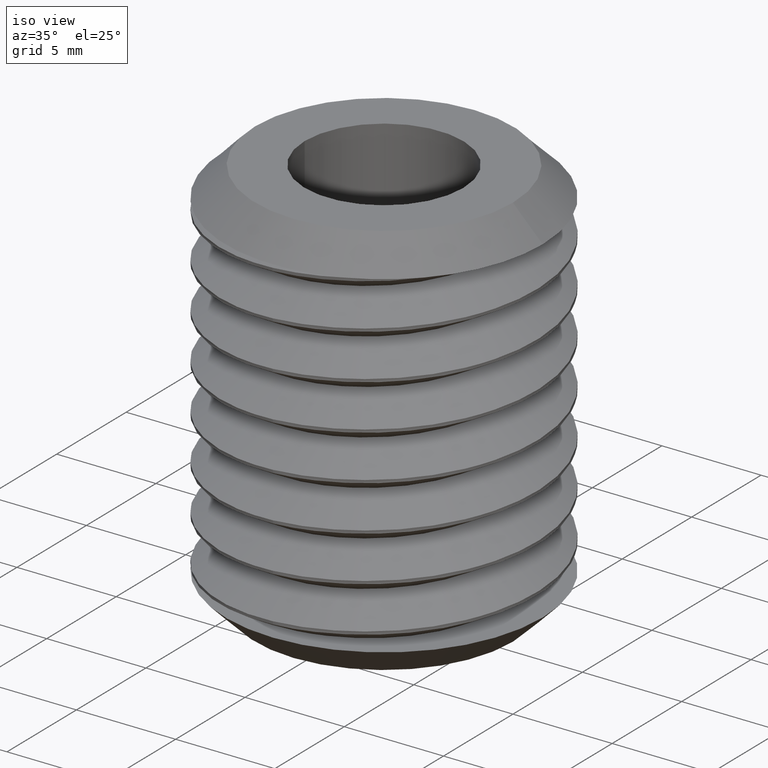
[diagram: clean part render]
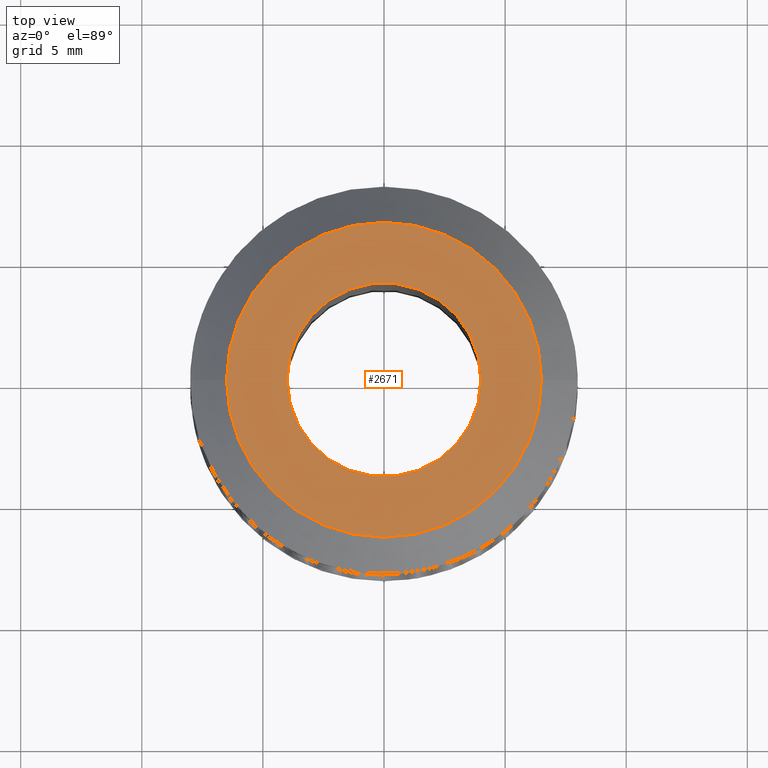
[diagram: tour spotlight — one face highlighted and labeled with its STEP entity id]
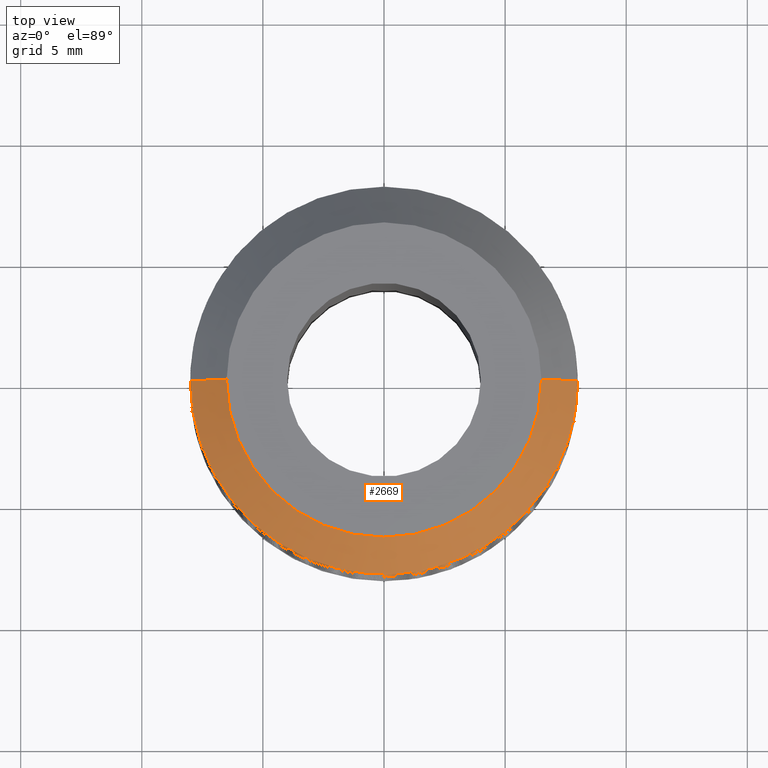
[diagram: tour spotlight — one face highlighted and labeled with its STEP entity id]
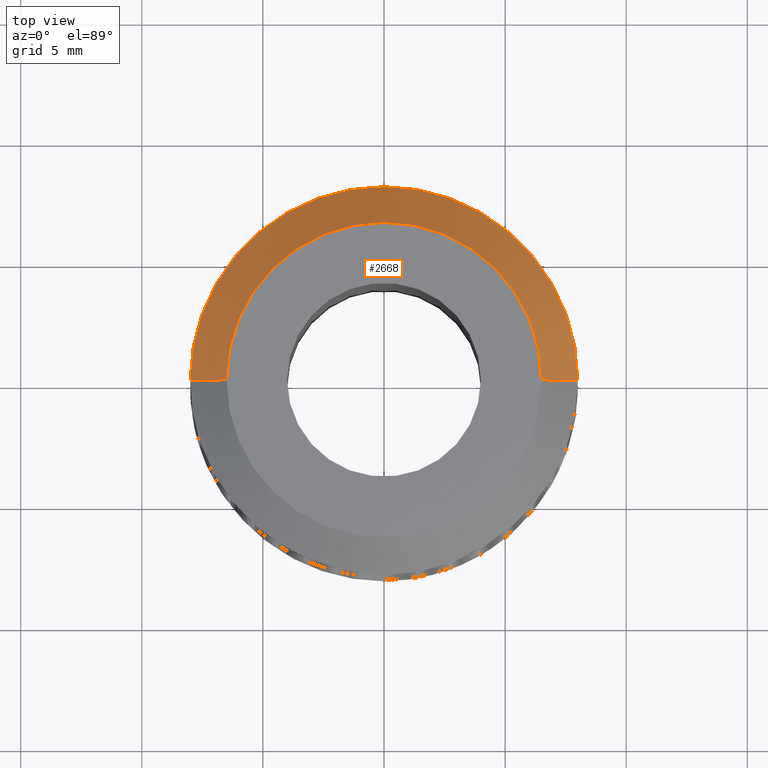
[diagram: tour spotlight — one face highlighted and labeled with its STEP entity id]
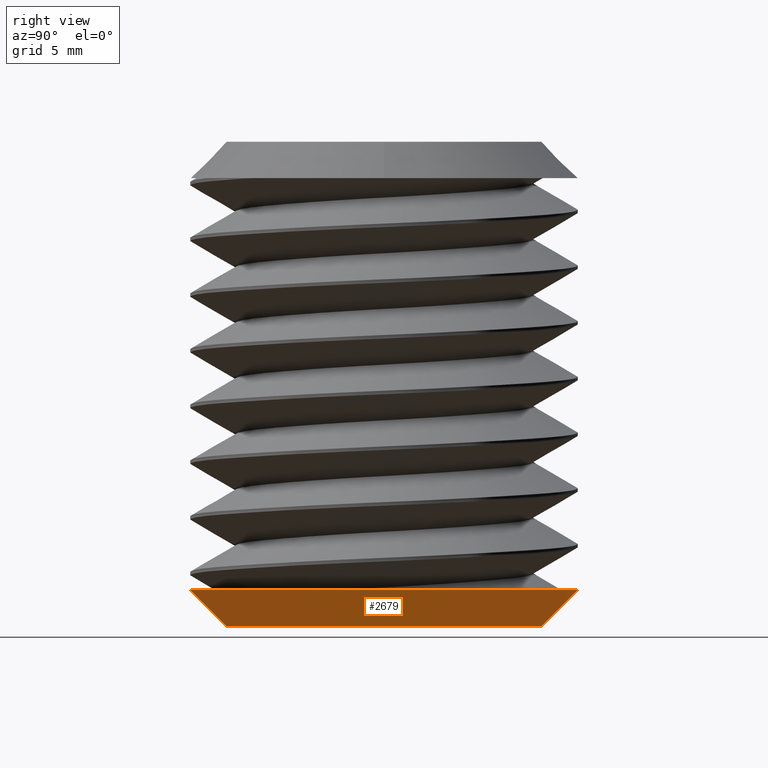
[diagram: tour spotlight — one face highlighted and labeled with its STEP entity id]
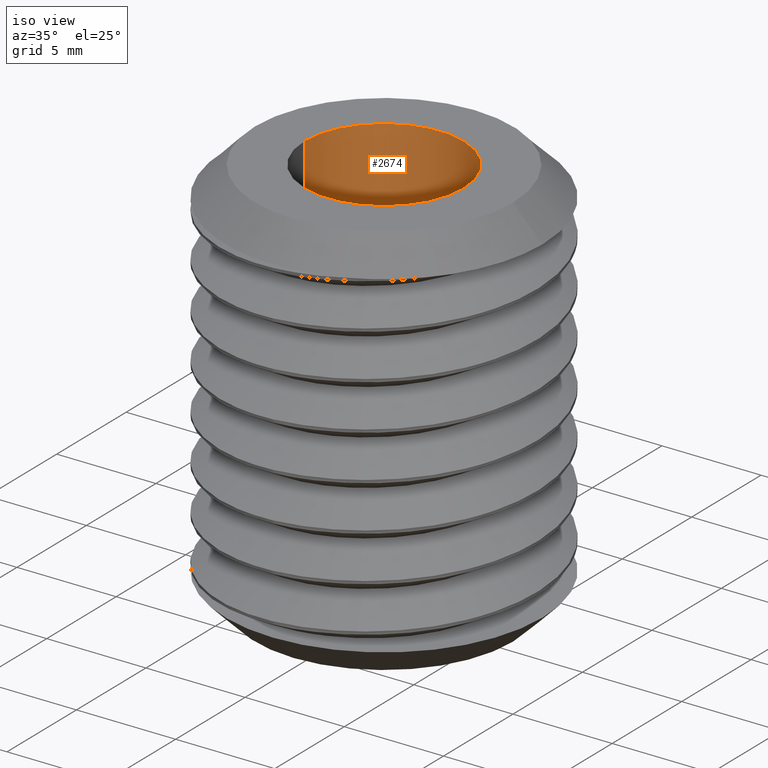
[diagram: tour spotlight — one face highlighted and labeled with its STEP entity id]
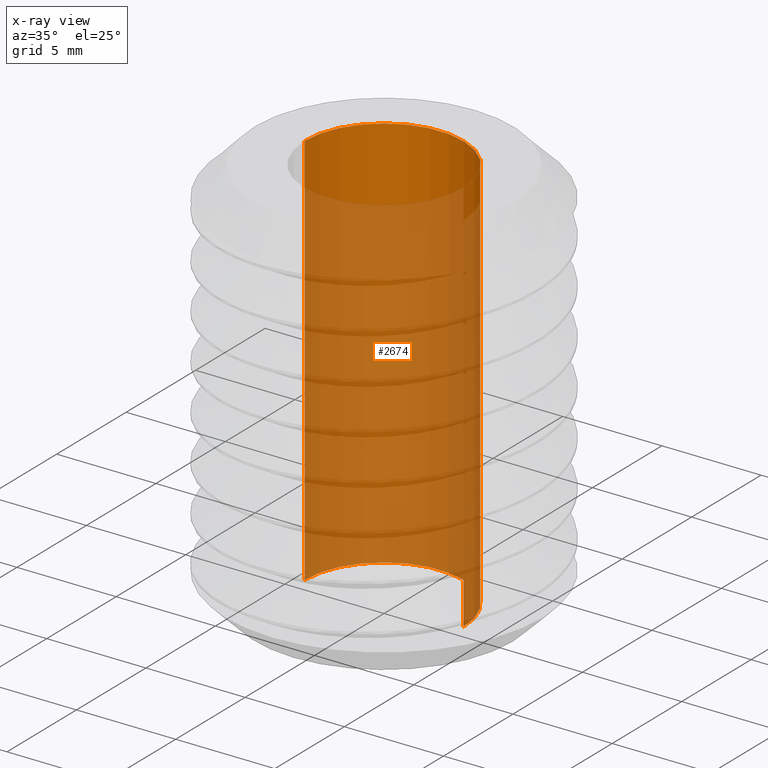
[diagram: x-ray of the same camera — body ghosted, this tour face saturated]
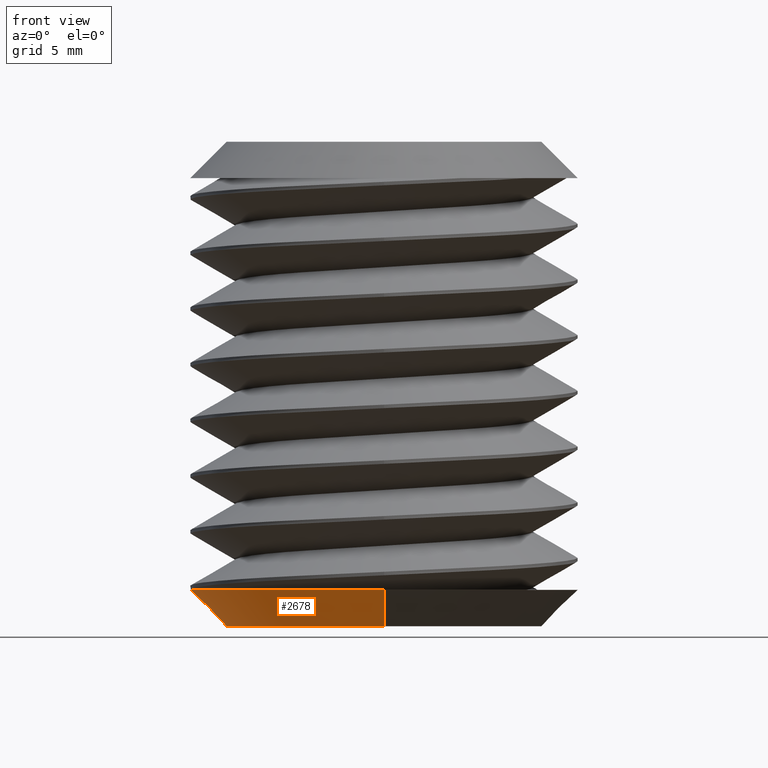
[diagram: tour spotlight — one face highlighted and labeled with its STEP entity id]
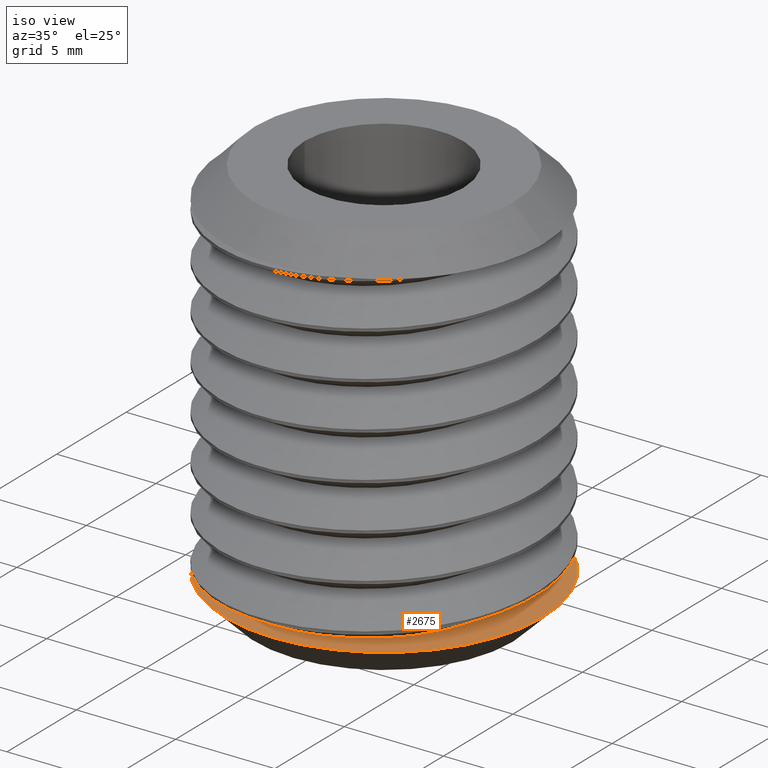
[diagram: tour spotlight — one face highlighted and labeled with its STEP entity id]
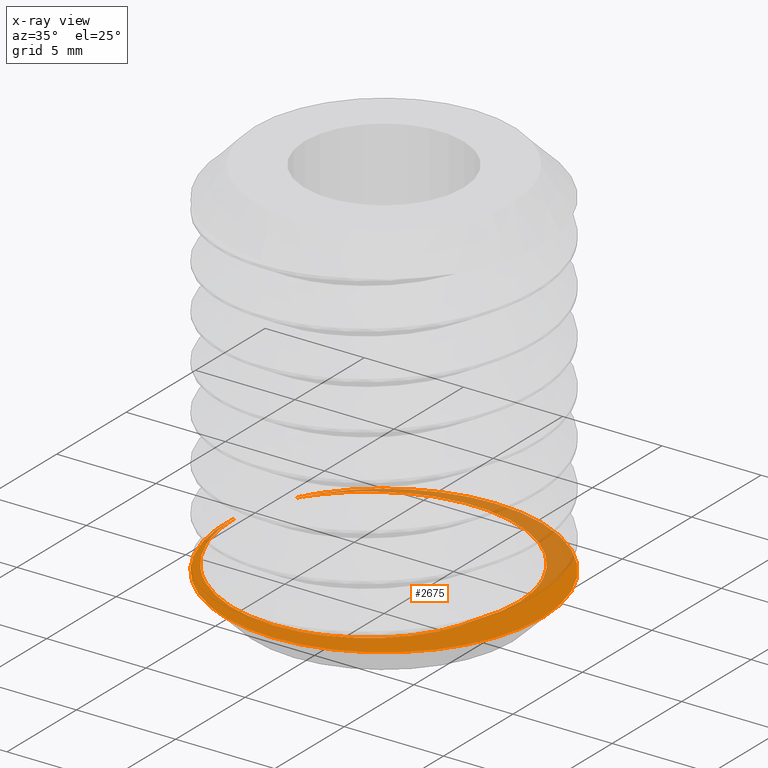
[diagram: x-ray of the same camera — body ghosted, this tour face saturated]
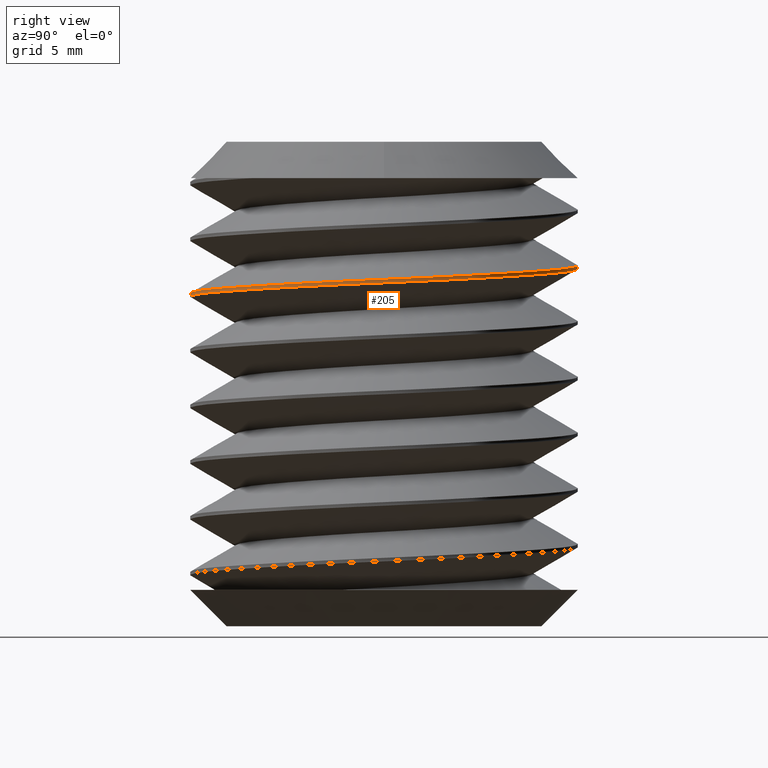
[diagram: tour spotlight — one face highlighted and labeled with its STEP entity id]
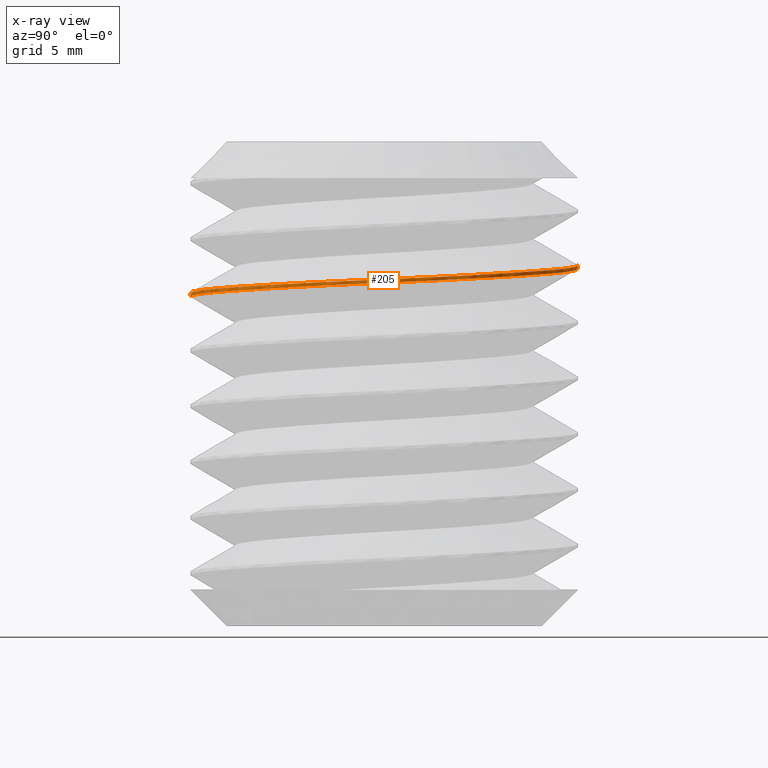
[diagram: x-ray of the same camera — body ghosted, this tour face saturated]
A machine part: a face-by-face anatomy tour. The part has 28 B-rep faces; the first image is the clean iso view, then the 8 largest visible faces are spotlighted one at a time (largest first), each with its STEP entity span.

Face 1 — top view, entity #2671. In plain terms, the highlighted planar face has unit normal (0, 0, 1).
Definition (entity closure, byte-faithful):
#211 = EDGE_CURVE ( 'NONE', #2784, #2789, #1636, .T. ) ;
#578 = CARTESIAN_POINT ( 'NONE',  ( -4.000000000000000000, 0.0000000000000000000, 0.0000000000000000000 ) ) ;
#579 = CARTESIAN_POINT ( 'NONE',  ( -6.500000000000000900, 0.0000000000000000000, 0.0000000000000000000 ) ) ;
#580 = CARTESIAN_POINT ( 'NONE',  ( 4.000000000000000000, 4.898587196589412800E-016, 0.0000000000000000000 ) ) ;
#584 = CARTESIAN_POINT ( 'NONE',  ( 6.500000000000000900, 8.878689293818310100E-016, 0.0000000000000000000 ) ) ;
#752 = PLANE ( 'NONE',  #2639 ) ;
#753 = CARTESIAN_POINT ( 'NONE',  ( -6.578000000000000300, -6.578000000000000300, 0.0000000000000000000 ) ) ;
#754 = DIRECTION ( 'NONE',  ( 0.0000000000000000000, 0.0000000000000000000, 1.000000000000000000 ) ) ;
#755 = DIRECTION ( 'NONE',  ( 1.000000000000000000, 0.0000000000000000000, 0.0000000000000000000 ) ) ;
#863 = EDGE_CURVE ( 'NONE', #2789, #2784, #1569, .T. ) ;
#1061 = CARTESIAN_POINT ( 'NONE',  ( 0.0000000000000000000, 0.0000000000000000000, 0.0000000000000000000 ) ) ;
#1062 = DIRECTION ( 'NONE',  ( -1.000000000000000000, 0.0000000000000000000, 0.0000000000000000000 ) ) ;
#1063 = DIRECTION ( 'NONE',  ( -0.0000000000000000000, -0.0000000000000000000, 1.000000000000000000 ) ) ;
#1071 = CARTESIAN_POINT ( 'NONE',  ( 0.0000000000000000000, 0.0000000000000000000, 0.0000000000000000000 ) ) ;
#1072 = DIRECTION ( 'NONE',  ( -1.000000000000000000, 0.0000000000000000000, 0.0000000000000000000 ) ) ;
#1073 = DIRECTION ( 'NONE',  ( -0.0000000000000000000, -0.0000000000000000000, 1.000000000000000000 ) ) ;
#1302 = CARTESIAN_POINT ( 'NONE',  ( 0.0000000000000000000, 0.0000000000000000000, 0.0000000000000000000 ) ) ;
#1303 = DIRECTION ( 'NONE',  ( -0.0000000000000000000, -0.0000000000000000000, 1.000000000000000000 ) ) ;
#1304 = DIRECTION ( 'NONE',  ( -1.000000000000000000, 0.0000000000000000000, 0.0000000000000000000 ) ) ;
#1442 = ORIENTED_EDGE ( 'NONE', *, *, #2598, .F. ) ;
#1443 = ORIENTED_EDGE ( 'NONE', *, *, #2726, .F. ) ;
#1444 = ORIENTED_EDGE ( 'NONE', *, *, #211, .T. ) ;
#1445 = ORIENTED_EDGE ( 'NONE', *, *, #863, .T. ) ;
#1536 = CIRCLE ( 'NONE', #2647, 4.000000000000000000 ) ;
#1546 = FACE_OUTER_BOUND ( 'NONE', #1595, .T. ) ;
#1561 = CIRCLE ( 'NONE', #2625, 4.000000000000000000 ) ;
#1569 = CIRCLE ( 'NONE', #2620, 6.500000000000000900 ) ;
#1595 = EDGE_LOOP ( 'NONE', ( #1444, #1445 ) ) ;
#1597 = EDGE_LOOP ( 'NONE', ( #1443, #1442 ) ) ;
#1636 = CIRCLE ( 'NONE', #2618, 6.500000000000000900 ) ;
#1691 = FACE_BOUND ( 'NONE', #1597, .T. ) ;
#2398 = CARTESIAN_POINT ( 'NONE',  ( 0.0000000000000000000, 0.0000000000000000000, 0.0000000000000000000 ) ) ;
#2399 = DIRECTION ( 'NONE',  ( -0.0000000000000000000, -0.0000000000000000000, 1.000000000000000000 ) ) ;
#2400 = DIRECTION ( 'NONE',  ( -1.000000000000000000, 0.0000000000000000000, 0.0000000000000000000 ) ) ;
#2598 = EDGE_CURVE ( 'NONE', #2785, #2783, #1561, .T. ) ;
#2618 = AXIS2_PLACEMENT_3D ( 'NONE', #1061, #1063, #1062 ) ;
#2620 = AXIS2_PLACEMENT_3D ( 'NONE', #1071, #1073, #1072 ) ;
#2625 = AXIS2_PLACEMENT_3D ( 'NONE', #1302, #1303, #1304 ) ;
#2639 = AXIS2_PLACEMENT_3D ( 'NONE', #753, #754, #755 ) ;
#2647 = AXIS2_PLACEMENT_3D ( 'NONE', #2398, #2399, #2400 ) ;
#2671 = ADVANCED_FACE ( 'NONE', ( #1691, #1546 ), #752, .T. ) ;
#2726 = EDGE_CURVE ( 'NONE', #2783, #2785, #1536, .T. ) ;
#2783 = VERTEX_POINT ( 'NONE', #578 ) ;
#2784 = VERTEX_POINT ( 'NONE', #579 ) ;
#2785 = VERTEX_POINT ( 'NONE', #580 ) ;
#2789 = VERTEX_POINT ( 'NONE', #584 ) ;

Face 2 — top view, entity #2669. In plain terms, the highlighted conical surface has half-angle 45 deg.
Definition (entity closure, byte-faithful):
#210 = EDGE_CURVE ( 'NONE', #2799, #2798, #1574, .T. ) ;
#211 = EDGE_CURVE ( 'NONE', #2784, #2789, #1636, .T. ) ;
#212 = EDGE_CURVE ( 'NONE', #2784, #2799, #1573, .T. ) ;
#575 = CARTESIAN_POINT ( 'NONE',  ( 8.000000000000000000, 9.797174393178825700E-016, -1.500000000000000000 ) ) ;
#579 = CARTESIAN_POINT ( 'NONE',  ( -6.500000000000000900, 0.0000000000000000000, 0.0000000000000000000 ) ) ;
#584 = CARTESIAN_POINT ( 'NONE',  ( 6.500000000000000900, 8.878689293818310100E-016, 0.0000000000000000000 ) ) ;
#592 = CARTESIAN_POINT ( 'NONE',  ( 3.187210474222873300, -7.337689648326436200, -1.500000000000000700 ) ) ;
#593 = CARTESIAN_POINT ( 'NONE',  ( -8.000000000000000000, 0.0000000000000000000, -1.500000000000000000 ) ) ;
#596 = CARTESIAN_POINT ( 'NONE',  ( 5.853420173174110500, -5.453207521842385200, -1.500000001023213500 ) ) ;
#745 = CARTESIAN_POINT ( 'NONE',  ( 0.0000000000000000000, 0.0000000000000000000, 0.0000000000000000000 ) ) ;
#746 = DIRECTION ( 'NONE',  ( 0.0000000000000000000, 0.0000000000000000000, -1.000000000000000000 ) ) ;
#747 = DIRECTION ( 'NONE',  ( -1.000000000000000000, 0.0000000000000000000, 0.0000000000000000000 ) ) ;
#862 = EDGE_CURVE ( 'NONE', #2789, #2779, #1572, .T. ) ;
#880 = DIRECTION ( 'NONE',  ( -1.000000000000000000, 1.776356839400250500E-015, 0.0000000000000000000 ) ) ;
#881 = CARTESIAN_POINT ( 'NONE',  ( 0.0000000000000000000, 0.0000000000000000000, -1.500000000000000000 ) ) ;
#882 = CARTESIAN_POINT ( 'NONE',  ( 0.0000000000000000000, 0.0000000000000000000, -1.500000000000001300 ) ) ;
#884 = DIRECTION ( 'NONE',  ( -0.0000000000000000000, -0.0000000000000000000, 1.000000000000000000 ) ) ;
#919 = DIRECTION ( 'NONE',  ( 0.0000000000000000000, 0.0000000000000000000, 1.000000000000000000 ) ) ;
#920 = DIRECTION ( 'NONE',  ( 1.000000000000000000, 0.0000000000000000000, 1.626303258728256700E-016 ) ) ;
#1058 = CARTESIAN_POINT ( 'NONE',  ( 0.0000000000000000000, 0.0000000000000000000, -1.500000000000000000 ) ) ;
#1059 = DIRECTION ( 'NONE',  ( -1.000000000000000000, 0.0000000000000000000, 0.0000000000000000000 ) ) ;
#1060 = DIRECTION ( 'NONE',  ( -0.0000000000000000000, -0.0000000000000000000, 1.000000000000000000 ) ) ;
#1061 = CARTESIAN_POINT ( 'NONE',  ( 0.0000000000000000000, 0.0000000000000000000, 0.0000000000000000000 ) ) ;
#1062 = DIRECTION ( 'NONE',  ( -1.000000000000000000, 0.0000000000000000000, 0.0000000000000000000 ) ) ;
#1063 = DIRECTION ( 'NONE',  ( -0.0000000000000000000, -0.0000000000000000000, 1.000000000000000000 ) ) ;
#1064 = CARTESIAN_POINT ( 'NONE',  ( -6.500000000000000900, 0.0000000000000000000, 0.0000000000000000000 ) ) ;
#1065 = DIRECTION ( 'NONE',  ( -0.7071067811865474600, 0.0000000000000000000, -0.7071067811865476800 ) ) ;
#1069 = DIRECTION ( 'NONE',  ( 0.7071067811865474600, 8.659560562354931600E-017, -0.7071067811865476800 ) ) ;
#1070 = CARTESIAN_POINT ( 'NONE',  ( 6.500000000000000900, 7.960204194457796500E-016, 0.0000000000000000000 ) ) ;
#1431 = ORIENTED_EDGE ( 'NONE', *, *, #862, .F. ) ;
#1432 = ORIENTED_EDGE ( 'NONE', *, *, #211, .F. ) ;
#1438 = ORIENTED_EDGE ( 'NONE', *, *, #210, .T. ) ;
#1439 = ORIENTED_EDGE ( 'NONE', *, *, #2100, .T. ) ;
#1440 = ORIENTED_EDGE ( 'NONE', *, *, #2099, .T. ) ;
#1486 = ORIENTED_EDGE ( 'NONE', *, *, #212, .T. ) ;
#1547 = CONICAL_SURFACE ( 'NONE', #2637, 6.500000000000000900, 0.7853981633974481700 ) ;
#1549 = FACE_OUTER_BOUND ( 'NONE', #1645, .T. ) ;
#1562 = CIRCLE ( 'NONE', #2624, 8.000000000000000000 ) ;
#1563 = CIRCLE ( 'NONE', #2623, 8.000000000000000000 ) ;
#1572 = LINE ( 'NONE', #1070, #1635 ) ;
#1573 = LINE ( 'NONE', #1064, #1637 ) ;
#1574 = CIRCLE ( 'NONE', #2617, 8.000000000000000000 ) ;
#1635 = VECTOR ( 'NONE', #1069, 1000.000000000000000 ) ;
#1636 = CIRCLE ( 'NONE', #2618, 6.500000000000000900 ) ;
#1637 = VECTOR ( 'NONE', #1065, 1000.000000000000000 ) ;
#1645 = EDGE_LOOP ( 'NONE', ( #1431, #1432, #1486, #1438, #1439, #1440 ) ) ;
#2099 = EDGE_CURVE ( 'NONE', #2802, #2779, #1563, .T. ) ;
#2100 = EDGE_CURVE ( 'NONE', #2798, #2802, #1562, .T. ) ;
#2617 = AXIS2_PLACEMENT_3D ( 'NONE', #1058, #1060, #1059 ) ;
#2618 = AXIS2_PLACEMENT_3D ( 'NONE', #1061, #1063, #1062 ) ;
#2623 = AXIS2_PLACEMENT_3D ( 'NONE', #881, #884, #880 ) ;
#2624 = AXIS2_PLACEMENT_3D ( 'NONE', #882, #919, #920 ) ;
#2637 = AXIS2_PLACEMENT_3D ( 'NONE', #745, #746, #747 ) ;
#2669 = ADVANCED_FACE ( 'NONE', ( #1549 ), #1547, .T. ) ;
#2779 = VERTEX_POINT ( 'NONE', #575 ) ;
#2784 = VERTEX_POINT ( 'NONE', #579 ) ;
#2789 = VERTEX_POINT ( 'NONE', #584 ) ;
#2798 = VERTEX_POINT ( 'NONE', #592 ) ;
#2799 = VERTEX_POINT ( 'NONE', #593 ) ;
#2802 = VERTEX_POINT ( 'NONE', #596 ) ;

Face 3 — top view, entity #2668. In plain terms, the highlighted conical surface has half-angle 45 deg.
Definition (entity closure, byte-faithful):
#212 = EDGE_CURVE ( 'NONE', #2784, #2799, #1573, .T. ) ;
#575 = CARTESIAN_POINT ( 'NONE',  ( 8.000000000000000000, 9.797174393178825700E-016, -1.500000000000000000 ) ) ;
#579 = CARTESIAN_POINT ( 'NONE',  ( -6.500000000000000900, 0.0000000000000000000, 0.0000000000000000000 ) ) ;
#584 = CARTESIAN_POINT ( 'NONE',  ( 6.500000000000000900, 8.878689293818310100E-016, 0.0000000000000000000 ) ) ;
#593 = CARTESIAN_POINT ( 'NONE',  ( -8.000000000000000000, 0.0000000000000000000, -1.500000000000000000 ) ) ;
#742 = CARTESIAN_POINT ( 'NONE',  ( 0.0000000000000000000, 0.0000000000000000000, 0.0000000000000000000 ) ) ;
#743 = DIRECTION ( 'NONE',  ( 0.0000000000000000000, 0.0000000000000000000, -1.000000000000000000 ) ) ;
#744 = DIRECTION ( 'NONE',  ( -1.000000000000000000, 0.0000000000000000000, 0.0000000000000000000 ) ) ;
#861 = EDGE_CURVE ( 'NONE', #2779, #2799, #1571, .T. ) ;
#862 = EDGE_CURVE ( 'NONE', #2789, #2779, #1572, .T. ) ;
#863 = EDGE_CURVE ( 'NONE', #2789, #2784, #1569, .T. ) ;
#1064 = CARTESIAN_POINT ( 'NONE',  ( -6.500000000000000900, 0.0000000000000000000, 0.0000000000000000000 ) ) ;
#1065 = DIRECTION ( 'NONE',  ( -0.7071067811865474600, 0.0000000000000000000, -0.7071067811865476800 ) ) ;
#1066 = DIRECTION ( 'NONE',  ( -0.0000000000000000000, -0.0000000000000000000, 1.000000000000000000 ) ) ;
#1067 = CARTESIAN_POINT ( 'NONE',  ( 0.0000000000000000000, 0.0000000000000000000, -1.500000000000000000 ) ) ;
#1068 = DIRECTION ( 'NONE',  ( -1.000000000000000000, 0.0000000000000000000, 0.0000000000000000000 ) ) ;
#1069 = DIRECTION ( 'NONE',  ( 0.7071067811865474600, 8.659560562354931600E-017, -0.7071067811865476800 ) ) ;
#1070 = CARTESIAN_POINT ( 'NONE',  ( 6.500000000000000900, 7.960204194457796500E-016, 0.0000000000000000000 ) ) ;
#1071 = CARTESIAN_POINT ( 'NONE',  ( 0.0000000000000000000, 0.0000000000000000000, 0.0000000000000000000 ) ) ;
#1072 = DIRECTION ( 'NONE',  ( -1.000000000000000000, 0.0000000000000000000, 0.0000000000000000000 ) ) ;
#1073 = DIRECTION ( 'NONE',  ( -0.0000000000000000000, -0.0000000000000000000, 1.000000000000000000 ) ) ;
#1433 = ORIENTED_EDGE ( 'NONE', *, *, #212, .F. ) ;
#1434 = ORIENTED_EDGE ( 'NONE', *, *, #861, .T. ) ;
#1435 = ORIENTED_EDGE ( 'NONE', *, *, #862, .T. ) ;
#1436 = ORIENTED_EDGE ( 'NONE', *, *, #863, .F. ) ;
#1548 = CONICAL_SURFACE ( 'NONE', #2636, 6.500000000000000900, 0.7853981633974481700 ) ;
#1550 = FACE_OUTER_BOUND ( 'NONE', #1644, .T. ) ;
#1569 = CIRCLE ( 'NONE', #2620, 6.500000000000000900 ) ;
#1571 = CIRCLE ( 'NONE', #2619, 8.000000000000000000 ) ;
#1572 = LINE ( 'NONE', #1070, #1635 ) ;
#1573 = LINE ( 'NONE', #1064, #1637 ) ;
#1635 = VECTOR ( 'NONE', #1069, 1000.000000000000000 ) ;
#1637 = VECTOR ( 'NONE', #1065, 1000.000000000000000 ) ;
#1644 = EDGE_LOOP ( 'NONE', ( #1436, #1435, #1434, #1433 ) ) ;
#2619 = AXIS2_PLACEMENT_3D ( 'NONE', #1067, #1066, #1068 ) ;
#2620 = AXIS2_PLACEMENT_3D ( 'NONE', #1071, #1073, #1072 ) ;
#2636 = AXIS2_PLACEMENT_3D ( 'NONE', #742, #743, #744 ) ;
#2668 = ADVANCED_FACE ( 'NONE', ( #1550 ), #1548, .T. ) ;
#2779 = VERTEX_POINT ( 'NONE', #575 ) ;
#2784 = VERTEX_POINT ( 'NONE', #579 ) ;
#2789 = VERTEX_POINT ( 'NONE', #584 ) ;
#2799 = VERTEX_POINT ( 'NONE', #593 ) ;

Face 4 — right view, entity #2679. In plain terms, the highlighted conical surface has half-angle 45 deg.
Definition (entity closure, byte-faithful):
#581 = CARTESIAN_POINT ( 'NONE',  ( 9.797174393178871000E-016, 8.000000000000037300, -18.49999999999995700 ) ) ;
#589 = CARTESIAN_POINT ( 'NONE',  ( 0.0000000000000000000, -6.499999999999983100, -20.00000000000001800 ) ) ;
#597 = CARTESIAN_POINT ( 'NONE',  ( 0.0000000000000000000, -8.000000000000040900, -18.49999999999996400 ) ) ;
#598 = CARTESIAN_POINT ( 'NONE',  ( 8.878689293776080400E-016, 6.499999999999983100, -20.00000000000001800 ) ) ;
#1526 = VECTOR ( 'NONE', #2027, 999.9999999999998900 ) ;
#1527 = CIRCLE ( 'NONE', #2648, 6.499999999999983100 ) ;
#1538 = CONICAL_SURFACE ( 'NONE', #2645, 6.500000000000000900, 0.7853981633974477200 ) ;
#1605 = EDGE_LOOP ( 'NONE', ( #1615, #1658, #1659, #1614 ) ) ;
#1614 = ORIENTED_EDGE ( 'NONE', *, *, #2747, .F. ) ;
#1615 = ORIENTED_EDGE ( 'NONE', *, *, #2743, .F. ) ;
#1658 = ORIENTED_EDGE ( 'NONE', *, *, #2744, .T. ) ;
#1659 = ORIENTED_EDGE ( 'NONE', *, *, #2746, .F. ) ;
#1676 = CIRCLE ( 'NONE', #2649, 8.000000000000039100 ) ;
#1677 = LINE ( 'NONE', #2026, #1526 ) ;
#1678 = LINE ( 'NONE', #1975, #1679 ) ;
#1679 = VECTOR ( 'NONE', #1976, 999.9999999999998900 ) ;
#1685 = FACE_OUTER_BOUND ( 'NONE', #1605, .T. ) ;
#1972 = CARTESIAN_POINT ( 'NONE',  ( 0.0000000000000000000, 4.629639289202483000E-030, -20.00000000000001800 ) ) ;
#1973 = DIRECTION ( 'NONE',  ( -0.0000000000000000000, 2.668805347656626200E-016, -1.000000000000000000 ) ) ;
#1974 = DIRECTION ( 'NONE',  ( 0.0000000000000000000, -1.000000000000000000, 0.0000000000000000000 ) ) ;
#1975 = CARTESIAN_POINT ( 'NONE',  ( 7.960204194457796500E-016, 6.500000000000000900, -19.99999999999999600 ) ) ;
#1976 = DIRECTION ( 'NONE',  ( 8.659560562354929200E-017, 0.7071067811865469100, 0.7071067811865482400 ) ) ;
#2023 = CARTESIAN_POINT ( 'NONE',  ( 0.0000000000000000000, -4.003208021485044500E-016, -18.49999999999996100 ) ) ;
#2024 = DIRECTION ( 'NONE',  ( 0.0000000000000000000, -2.668805347656626200E-016, 1.000000000000000000 ) ) ;
#2025 = DIRECTION ( 'NONE',  ( 0.0000000000000000000, -1.000000000000000000, -4.336808689941996500E-016 ) ) ;
#2026 = CARTESIAN_POINT ( 'NONE',  ( 0.0000000000000000000, -6.500000000000000900, -20.00000000000000400 ) ) ;
#2027 = DIRECTION ( 'NONE',  ( 0.0000000000000000000, -0.7071067811865473500, 0.7071067811865477900 ) ) ;
#2346 = CARTESIAN_POINT ( 'NONE',  ( 0.0000000000000000000, 0.0000000000000000000, -20.00000000000000000 ) ) ;
#2347 = DIRECTION ( 'NONE',  ( 0.0000000000000000000, -2.668805347656626200E-016, 1.000000000000000000 ) ) ;
#2348 = DIRECTION ( 'NONE',  ( 0.0000000000000000000, -1.000000000000000000, -5.337610695313251400E-016 ) ) ;
#2645 = AXIS2_PLACEMENT_3D ( 'NONE', #2346, #2347, #2348 ) ;
#2648 = AXIS2_PLACEMENT_3D ( 'NONE', #1972, #1973, #1974 ) ;
#2649 = AXIS2_PLACEMENT_3D ( 'NONE', #2023, #2024, #2025 ) ;
#2679 = ADVANCED_FACE ( 'NONE', ( #1685 ), #1538, .T. ) ;
#2743 = EDGE_CURVE ( 'NONE', #2804, #2795, #1527, .T. ) ;
#2744 = EDGE_CURVE ( 'NONE', #2804, #2786, #1678, .T. ) ;
#2746 = EDGE_CURVE ( 'NONE', #2803, #2786, #1676, .T. ) ;
#2747 = EDGE_CURVE ( 'NONE', #2795, #2803, #1677, .T. ) ;
#2786 = VERTEX_POINT ( 'NONE', #581 ) ;
#2795 = VERTEX_POINT ( 'NONE', #589 ) ;
#2803 = VERTEX_POINT ( 'NONE', #597 ) ;
#2804 = VERTEX_POINT ( 'NONE', #598 ) ;

Face 5 — iso view, entity #2674. An x-ray twin of the same camera follows (body ghosted, this face saturated) — the face is partly hidden behind the body. In plain terms, the highlighted cylindrical surface (partial cylindrical patch) has radius 4 mm, axis along (0, 0, -1).
Definition (entity closure, byte-faithful):
#578 = CARTESIAN_POINT ( 'NONE',  ( -4.000000000000000000, 0.0000000000000000000, 0.0000000000000000000 ) ) ;
#580 = CARTESIAN_POINT ( 'NONE',  ( 4.000000000000000000, 4.898587196589412800E-016, 0.0000000000000000000 ) ) ;
#583 = CARTESIAN_POINT ( 'NONE',  ( -4.000000000000000000, 0.0000000000000000000, -20.00000000000000000 ) ) ;
#588 = CARTESIAN_POINT ( 'NONE',  ( 4.000000000000000000, 4.898587196589412800E-016, -20.00000000000000000 ) ) ;
#712 = CARTESIAN_POINT ( 'NONE',  ( 0.0000000000000000000, 0.0000000000000000000, -20.00000000000000000 ) ) ;
#713 = DIRECTION ( 'NONE',  ( 0.0000000000000000000, 0.0000000000000000000, -1.000000000000000000 ) ) ;
#714 = DIRECTION ( 'NONE',  ( -1.000000000000000000, 0.0000000000000000000, 0.0000000000000000000 ) ) ;
#864 = EDGE_CURVE ( 'NONE', #2783, #2788, #1570, .T. ) ;
#866 = EDGE_CURVE ( 'NONE', #2785, #2794, #1633, .T. ) ;
#1074 = CARTESIAN_POINT ( 'NONE',  ( -4.000000000000000000, 0.0000000000000000000, 0.0000000000000000000 ) ) ;
#1075 = DIRECTION ( 'NONE',  ( 0.0000000000000000000, 0.0000000000000000000, -1.000000000000000000 ) ) ;
#1118 = CARTESIAN_POINT ( 'NONE',  ( 4.000000000000000000, 4.898587196589412800E-016, 0.0000000000000000000 ) ) ;
#1119 = DIRECTION ( 'NONE',  ( 0.0000000000000000000, 0.0000000000000000000, -1.000000000000000000 ) ) ;
#1302 = CARTESIAN_POINT ( 'NONE',  ( 0.0000000000000000000, 0.0000000000000000000, 0.0000000000000000000 ) ) ;
#1303 = DIRECTION ( 'NONE',  ( -0.0000000000000000000, -0.0000000000000000000, 1.000000000000000000 ) ) ;
#1304 = DIRECTION ( 'NONE',  ( -1.000000000000000000, 0.0000000000000000000, 0.0000000000000000000 ) ) ;
#1561 = CIRCLE ( 'NONE', #2625, 4.000000000000000000 ) ;
#1567 = VECTOR ( 'NONE', #1119, 1000.000000000000000 ) ;
#1568 = VECTOR ( 'NONE', #1075, 1000.000000000000000 ) ;
#1570 = LINE ( 'NONE', #1074, #1568 ) ;
#1592 = EDGE_LOOP ( 'NONE', ( #1626, #1622, #2193, #2192 ) ) ;
#1622 = ORIENTED_EDGE ( 'NONE', *, *, #2598, .T. ) ;
#1626 = ORIENTED_EDGE ( 'NONE', *, *, #866, .F. ) ;
#1633 = LINE ( 'NONE', #1118, #1567 ) ;
#1686 = CYLINDRICAL_SURFACE ( 'NONE', #2640, 4.000000000000000000 ) ;
#1687 = FACE_OUTER_BOUND ( 'NONE', #1592, .T. ) ;
#1697 = CIRCLE ( 'NONE', #2626, 4.000000000000000000 ) ;
#2192 = ORIENTED_EDGE ( 'NONE', *, *, #2604, .T. ) ;
#2193 = ORIENTED_EDGE ( 'NONE', *, *, #864, .T. ) ;
#2329 = CARTESIAN_POINT ( 'NONE',  ( 0.0000000000000000000, 0.0000000000000000000, 0.0000000000000000000 ) ) ;
#2330 = DIRECTION ( 'NONE',  ( 0.0000000000000000000, 0.0000000000000000000, -1.000000000000000000 ) ) ;
#2331 = DIRECTION ( 'NONE',  ( -1.000000000000000000, 0.0000000000000000000, 0.0000000000000000000 ) ) ;
#2598 = EDGE_CURVE ( 'NONE', #2785, #2783, #1561, .T. ) ;
#2604 = EDGE_CURVE ( 'NONE', #2788, #2794, #1697, .T. ) ;
#2625 = AXIS2_PLACEMENT_3D ( 'NONE', #1302, #1303, #1304 ) ;
#2626 = AXIS2_PLACEMENT_3D ( 'NONE', #712, #713, #714 ) ;
#2640 = AXIS2_PLACEMENT_3D ( 'NONE', #2329, #2330, #2331 ) ;
#2674 = ADVANCED_FACE ( 'NONE', ( #1687 ), #1686, .F. ) ;
#2783 = VERTEX_POINT ( 'NONE', #578 ) ;
#2785 = VERTEX_POINT ( 'NONE', #580 ) ;
#2788 = VERTEX_POINT ( 'NONE', #583 ) ;
#2794 = VERTEX_POINT ( 'NONE', #588 ) ;

Face 6 — front view, entity #2678. In plain terms, the highlighted conical surface has half-angle 45 deg.
Definition (entity closure, byte-faithful):
#581 = CARTESIAN_POINT ( 'NONE',  ( 9.797174393178871000E-016, 8.000000000000037300, -18.49999999999995700 ) ) ;
#589 = CARTESIAN_POINT ( 'NONE',  ( 0.0000000000000000000, -6.499999999999983100, -20.00000000000001800 ) ) ;
#595 = CARTESIAN_POINT ( 'NONE',  ( -7.973336250735811400, 0.6526170642623409000, -18.50000000006894800 ) ) ;
#597 = CARTESIAN_POINT ( 'NONE',  ( 0.0000000000000000000, -8.000000000000040900, -18.49999999999996400 ) ) ;
#598 = CARTESIAN_POINT ( 'NONE',  ( 8.878689293776080400E-016, 6.499999999999983100, -20.00000000000001800 ) ) ;
#617 = CARTESIAN_POINT ( 'NONE',  ( -7.121637791995018700, 3.644485582304946000, -18.49999999947287000 ) ) ;
#715 = CARTESIAN_POINT ( 'NONE',  ( 0.0000000000000000000, -4.003208021485044500E-016, -18.49999999999996100 ) ) ;
#716 = DIRECTION ( 'NONE',  ( 0.0000000000000000000, -2.668805347656626200E-016, 1.000000000000000000 ) ) ;
#717 = DIRECTION ( 'NONE',  ( 0.0000000000000000000, -1.000000000000000000, -4.336808689941996500E-016 ) ) ;
#718 = CARTESIAN_POINT ( 'NONE',  ( 0.0000000000000000000, -4.003208021485044500E-016, -18.49999999999996100 ) ) ;
#719 = DIRECTION ( 'NONE',  ( 0.0000000000000000000, -2.668805347656626200E-016, 1.000000000000000000 ) ) ;
#720 = DIRECTION ( 'NONE',  ( 0.0000000000000000000, -1.000000000000000000, -4.336808689941996500E-016 ) ) ;
#721 = CARTESIAN_POINT ( 'NONE',  ( 0.0000000000000000000, 4.629639289202483000E-030, -20.00000000000001800 ) ) ;
#722 = DIRECTION ( 'NONE',  ( -0.0000000000000000000, 2.668805347656626200E-016, -1.000000000000000000 ) ) ;
#723 = DIRECTION ( 'NONE',  ( 0.0000000000000000000, -1.000000000000000000, 0.0000000000000000000 ) ) ;
#1055 = EDGE_CURVE ( 'NONE', #2823, #2801, #1565, .T. ) ;
#1115 = DIRECTION ( 'NONE',  ( 0.0000000000000000000, 0.0000000000000000000, 1.000000000000000000 ) ) ;
#1116 = DIRECTION ( 'NONE',  ( 1.000000000000000000, 0.0000000000000000000, -4.770489558936219500E-015 ) ) ;
#1117 = CARTESIAN_POINT ( 'NONE',  ( 0.0000000000000000000, 0.0000000000000000000, -18.49999999999996100 ) ) ;
#1526 = VECTOR ( 'NONE', #2027, 999.9999999999998900 ) ;
#1539 = CONICAL_SURFACE ( 'NONE', #2644, 6.500000000000000900, 0.7853981633974477200 ) ;
#1540 = FACE_OUTER_BOUND ( 'NONE', #1590, .T. ) ;
#1558 = CIRCLE ( 'NONE', #2629, 6.499999999999983100 ) ;
#1559 = CIRCLE ( 'NONE', #2628, 8.000000000000039100 ) ;
#1560 = CIRCLE ( 'NONE', #2627, 8.000000000000039100 ) ;
#1565 = CIRCLE ( 'NONE', #2622, 8.000000000000000000 ) ;
#1590 = EDGE_LOOP ( 'NONE', ( #2178, #2177, #2176, #2175, #2174, #2173 ) ) ;
#1677 = LINE ( 'NONE', #2026, #1526 ) ;
#1678 = LINE ( 'NONE', #1975, #1679 ) ;
#1679 = VECTOR ( 'NONE', #1976, 999.9999999999998900 ) ;
#1975 = CARTESIAN_POINT ( 'NONE',  ( 7.960204194457796500E-016, 6.500000000000000900, -19.99999999999999600 ) ) ;
#1976 = DIRECTION ( 'NONE',  ( 8.659560562354929200E-017, 0.7071067811865469100, 0.7071067811865482400 ) ) ;
#2026 = CARTESIAN_POINT ( 'NONE',  ( 0.0000000000000000000, -6.500000000000000900, -20.00000000000000400 ) ) ;
#2027 = DIRECTION ( 'NONE',  ( 0.0000000000000000000, -0.7071067811865473500, 0.7071067811865477900 ) ) ;
#2173 = ORIENTED_EDGE ( 'NONE', *, *, #2606, .F. ) ;
#2174 = ORIENTED_EDGE ( 'NONE', *, *, #1055, .F. ) ;
#2175 = ORIENTED_EDGE ( 'NONE', *, *, #2605, .F. ) ;
#2176 = ORIENTED_EDGE ( 'NONE', *, *, #2747, .T. ) ;
#2177 = ORIENTED_EDGE ( 'NONE', *, *, #2607, .F. ) ;
#2178 = ORIENTED_EDGE ( 'NONE', *, *, #2744, .F. ) ;
#2343 = CARTESIAN_POINT ( 'NONE',  ( 0.0000000000000000000, 0.0000000000000000000, -20.00000000000000000 ) ) ;
#2344 = DIRECTION ( 'NONE',  ( 0.0000000000000000000, -2.668805347656626200E-016, 1.000000000000000000 ) ) ;
#2345 = DIRECTION ( 'NONE',  ( 0.0000000000000000000, -1.000000000000000000, -5.337610695313251400E-016 ) ) ;
#2605 = EDGE_CURVE ( 'NONE', #2801, #2803, #1560, .T. ) ;
#2606 = EDGE_CURVE ( 'NONE', #2786, #2823, #1559, .T. ) ;
#2607 = EDGE_CURVE ( 'NONE', #2795, #2804, #1558, .T. ) ;
#2622 = AXIS2_PLACEMENT_3D ( 'NONE', #1117, #1115, #1116 ) ;
#2627 = AXIS2_PLACEMENT_3D ( 'NONE', #715, #716, #717 ) ;
#2628 = AXIS2_PLACEMENT_3D ( 'NONE', #718, #719, #720 ) ;
#2629 = AXIS2_PLACEMENT_3D ( 'NONE', #721, #722, #723 ) ;
#2644 = AXIS2_PLACEMENT_3D ( 'NONE', #2343, #2344, #2345 ) ;
#2678 = ADVANCED_FACE ( 'NONE', ( #1540 ), #1539, .T. ) ;
#2744 = EDGE_CURVE ( 'NONE', #2804, #2786, #1678, .T. ) ;
#2747 = EDGE_CURVE ( 'NONE', #2795, #2803, #1677, .T. ) ;
#2786 = VERTEX_POINT ( 'NONE', #581 ) ;
#2795 = VERTEX_POINT ( 'NONE', #589 ) ;
#2801 = VERTEX_POINT ( 'NONE', #595 ) ;
#2803 = VERTEX_POINT ( 'NONE', #597 ) ;
#2804 = VERTEX_POINT ( 'NONE', #598 ) ;
#2823 = VERTEX_POINT ( 'NONE', #617 ) ;

Face 7 — iso view, entity #2675. An x-ray twin of the same camera follows (body ghosted, this face saturated) — the face is partly hidden behind the body. In plain terms, the highlighted planar face has unit normal (0, 0, -1).
Definition (entity closure, byte-faithful):
#577 = CARTESIAN_POINT ( 'NONE',  ( 5.890852119270323200, -1.707524254222811700, -18.49999999954771500 ) ) ;
#581 = CARTESIAN_POINT ( 'NONE',  ( 9.797174393178871000E-016, 8.000000000000037300, -18.49999999999995700 ) ) ;
#595 = CARTESIAN_POINT ( 'NONE',  ( -7.973336250735811400, 0.6526170642623409000, -18.50000000006894800 ) ) ;
#597 = CARTESIAN_POINT ( 'NONE',  ( 0.0000000000000000000, -8.000000000000040900, -18.49999999999996400 ) ) ;
#617 = CARTESIAN_POINT ( 'NONE',  ( -7.121637791995018700, 3.644485582304946000, -18.49999999947287000 ) ) ;
#645 = CARTESIAN_POINT ( 'NONE',  ( -1.536464425907675800, -6.945367095784855700, -18.50000000000000400 ) ) ;
#646 = CARTESIAN_POINT ( 'NONE',  ( -1.105299759582132800, -6.986495682032280100, -18.49999999999999300 ) ) ;
#647 = CARTESIAN_POINT ( 'NONE',  ( -0.4557036924904606700, -6.987819808040921300, -18.50000000000000000 ) ) ;
#648 = CARTESIAN_POINT ( 'NONE',  ( -0.2386936946740974600, -6.978133385016390900, -18.50000000000000700 ) ) ;
#649 = CARTESIAN_POINT ( 'NONE',  ( 0.1963078978443255600, -6.937961530818228100, -18.50000000000000400 ) ) ;
#650 = CARTESIAN_POINT ( 'NONE',  ( 0.4146136679038761600, -6.907285437569806100, -18.50000000000000400 ) ) ;
#651 = CARTESIAN_POINT ( 'NONE',  ( 1.056897592744124600, -6.785826745583596800, -18.50000000000000400 ) ) ;
#652 = CARTESIAN_POINT ( 'NONE',  ( 1.473072626539964700, -6.665624406791671700, -18.50000000000001100 ) ) ;
#653 = CARTESIAN_POINT ( 'NONE',  ( 2.281626492752685900, -6.347518490385789700, -18.50000000000000700 ) ) ;
#654 = CARTESIAN_POINT ( 'NONE',  ( 2.676563028718344800, -6.147186331863508700, -18.50000000000000000 ) ) ;
#655 = CARTESIAN_POINT ( 'NONE',  ( 3.410235263226818700, -5.683425297438375900, -18.50000000000000000 ) ) ;
#656 = CARTESIAN_POINT ( 'NONE',  ( 3.752462954855362300, -5.418519113678238200, -18.50000000000000000 ) ) ;
#657 = CARTESIAN_POINT ( 'NONE',  ( 4.224006285433913100, -4.965064675219621500, -18.50000000000000000 ) ) ;
#658 = CARTESIAN_POINT ( 'NONE',  ( 4.375099191835349900, -4.803749560555973000, -18.50000000000000700 ) ) ;
#659 = CARTESIAN_POINT ( 'NONE',  ( 4.656605776018079900, -4.469664170575364400, -18.50000000000000400 ) ) ;
#660 = CARTESIAN_POINT ( 'NONE',  ( 4.787698856385335800, -4.296420802309650200, -18.50000000000000400 ) ) ;
#661 = CARTESIAN_POINT ( 'NONE',  ( 5.152666054637845300, -3.758517832105198400, -18.50000000000000400 ) ) ;
#662 = CARTESIAN_POINT ( 'NONE',  ( 5.358829892974311400, -3.375181022676636100, -18.49999999999999600 ) ) ;
#663 = CARTESIAN_POINT ( 'NONE',  ( 5.691223842035570100, -2.560845841071544000, -18.49999999999999300 ) ) ;
#664 = CARTESIAN_POINT ( 'NONE',  ( 5.813191747903326600, -2.140690463297805700, -18.50000000000000700 ) ) ;
#665 = CARTESIAN_POINT ( 'NONE',  ( 5.890852119270323200, -1.707524254222811700, -18.49999999954771500 ) ) ;
#674 = CARTESIAN_POINT ( 'NONE',  ( 5.890852119270323200, -1.707524254222811700, -18.49999999954771500 ) ) ;
#675 = CARTESIAN_POINT ( 'NONE',  ( 6.057020249979975000, -1.299634564985447300, -18.50000000000000700 ) ) ;
#676 = CARTESIAN_POINT ( 'NONE',  ( 6.175349318846605800, -0.8811245748869885900, -18.50000000000000400 ) ) ;
#677 = CARTESIAN_POINT ( 'NONE',  ( 6.320216096361756200, -0.02372687549618552500, -18.50000000000000400 ) ) ;
#678 = CARTESIAN_POINT ( 'NONE',  ( 6.345735992459350600, 0.4192829847067339700, -18.50000000000000000 ) ) ;
#679 = CARTESIAN_POINT ( 'NONE',  ( 6.312311130224832000, 1.290259962990143400, -18.50000000000000000 ) ) ;
#680 = CARTESIAN_POINT ( 'NONE',  ( 6.253074376298901200, 1.721503962419696200, -18.50000000000000000 ) ) ;
#681 = CARTESIAN_POINT ( 'NONE',  ( 6.047508681802219700, 2.575299009438248200, -18.50000000000000000 ) ) ;
#682 = CARTESIAN_POINT ( 'NONE',  ( 5.903045406733349800, 2.988310217160465000, -18.49999999999999600 ) ) ;
#683 = CARTESIAN_POINT ( 'NONE',  ( 5.629125816895923500, 3.578781994315056300, -18.50000000000000000 ) ) ;
#684 = CARTESIAN_POINT ( 'NONE',  ( 5.528090305862835200, 3.771240766511733300, -18.50000000000000400 ) ) ;
#685 = CARTESIAN_POINT ( 'NONE',  ( 5.306208759846024100, 4.147269818100856000, -18.50000000000000700 ) ) ;
#686 = CARTESIAN_POINT ( 'NONE',  ( 5.184624000969253500, 4.331740652127481700, -18.50000000000000400 ) ) ;
#687 = CARTESIAN_POINT ( 'NONE',  ( 4.796708766261378500, 4.860925499097356300, -18.50000000000000000 ) ) ;
#688 = CARTESIAN_POINT ( 'NONE',  ( 4.506665265475680500, 5.183903631049021000, -18.50000000000001100 ) ) ;
#689 = CARTESIAN_POINT ( 'NONE',  ( 3.864852800376016100, 5.771318714658850300, -18.50000000000001400 ) ) ;
#690 = CARTESIAN_POINT ( 'NONE',  ( 3.509045396643697900, 6.035926654479391500, -18.49999999999996800 ) ) ;
#691 = CARTESIAN_POINT ( 'NONE',  ( 2.765808599445446000, 6.490517318746294800, -18.49999999999996800 ) ) ;
#692 = CARTESIAN_POINT ( 'NONE',  ( 2.375998424118917400, 6.683505813954472100, -18.50000000000000400 ) ) ;
#693 = CARTESIAN_POINT ( 'NONE',  ( 1.763536918142190900, 6.920663495410426700, -18.50000000000000000 ) ) ;
#694 = CARTESIAN_POINT ( 'NONE',  ( 1.554385310726889000, 6.990930324081771700, -18.50000000000000400 ) ) ;
#695 = CARTESIAN_POINT ( 'NONE',  ( 1.134720668689253700, 7.111169387996992200, -18.50000000000000400 ) ) ;
#696 = CARTESIAN_POINT ( 'NONE',  ( 0.9232439153761874400, 7.161559473967336900, -18.50000000000000400 ) ) ;
#697 = CARTESIAN_POINT ( 'NONE',  ( 0.2839677995238957800, 7.284058747044467100, -18.50000000000000000 ) ) ;
#698 = CARTESIAN_POINT ( 'NONE',  ( -0.1486377495883050300, 7.327731656883704800, -18.49999999999999600 ) ) ;
#699 = CARTESIAN_POINT ( 'NONE',  ( -1.027167862189568600, 7.336274213310735700, -18.49999999999999600 ) ) ;
#700 = CARTESIAN_POINT ( 'NONE',  ( -1.462333011440557700, 7.300810797661059200, -18.49999999999999300 ) ) ;
#701 = CARTESIAN_POINT ( 'NONE',  ( -2.317268895504152900, 7.154077969626373900, -18.50000000000000000 ) ) ;
#702 = CARTESIAN_POINT ( 'NONE',  ( -2.739914218419742000, 7.042229248889618100, -18.50000000000000700 ) ) ;
#703 = CARTESIAN_POINT ( 'NONE',  ( -3.564911052983147600, 6.741552574847167600, -18.50000000000000700 ) ) ;
#704 = CARTESIAN_POINT ( 'NONE',  ( -3.957959463137336300, 6.555472819767746100, -18.50000000000000400 ) ) ;
#705 = CARTESIAN_POINT ( 'NONE',  ( -4.522670228314901800, 6.230666942889340200, -18.50000000000000400 ) ) ;
#706 = CARTESIAN_POINT ( 'NONE',  ( -4.706660454934371400, 6.114594571785526800, -18.50000000000000400 ) ) ;
#707 = CARTESIAN_POINT ( 'NONE',  ( -5.066005786584498500, 5.866581892426613500, -18.50000000000000700 ) ) ;
#708 = CARTESIAN_POINT ( 'NONE',  ( -5.242108564485644900, 5.733978827203390700, -18.50000000000000000 ) ) ;
#709 = CARTESIAN_POINT ( 'NONE',  ( -6.087164946871419100, 5.041014772248170800, -18.49999999999999300 ) ) ;
#710 = CARTESIAN_POINT ( 'NONE',  ( -6.657919602362777100, 4.391241957115885200, -18.50000000000000000 ) ) ;
#711 = CARTESIAN_POINT ( 'NONE',  ( -7.121637791995018700, 3.644485582304946000, -18.49999999947287000 ) ) ;
#715 = CARTESIAN_POINT ( 'NONE',  ( 0.0000000000000000000, -4.003208021485044500E-016, -18.49999999999996100 ) ) ;
#716 = DIRECTION ( 'NONE',  ( 0.0000000000000000000, -2.668805347656626200E-016, 1.000000000000000000 ) ) ;
#717 = DIRECTION ( 'NONE',  ( 0.0000000000000000000, -1.000000000000000000, -4.336808689941996500E-016 ) ) ;
#718 = CARTESIAN_POINT ( 'NONE',  ( 0.0000000000000000000, -4.003208021485044500E-016, -18.49999999999996100 ) ) ;
#719 = DIRECTION ( 'NONE',  ( 0.0000000000000000000, -2.668805347656626200E-016, 1.000000000000000000 ) ) ;
#720 = DIRECTION ( 'NONE',  ( 0.0000000000000000000, -1.000000000000000000, -4.336808689941996500E-016 ) ) ;
#1410 = CARTESIAN_POINT ( 'NONE',  ( -7.973336250735811400, 0.6526170642623409000, -18.50000000006894800 ) ) ;
#1411 = CARTESIAN_POINT ( 'NONE',  ( -7.976311860957793000, 0.2142282366657542700, -18.50000000000000700 ) ) ;
#1412 = CARTESIAN_POINT ( 'NONE',  ( -7.945338117495481400, -0.2190928816359265200, -18.50000000000000000 ) ) ;
#1413 = CARTESIAN_POINT ( 'NONE',  ( -7.809254653868585200, -1.074668649292902100, -18.50000000000000400 ) ) ;
#1414 = CARTESIAN_POINT ( 'NONE',  ( -7.704059553974580900, -1.499451452305076400, -18.50000000000000400 ) ) ;
#1415 = CARTESIAN_POINT ( 'NONE',  ( -7.421116840536332600, -2.326871602284639200, -18.50000000000000400 ) ) ;
#1416 = CARTESIAN_POINT ( 'NONE',  ( -7.246066265345086200, -2.723053307405496300, -18.50000000000000000 ) ) ;
#1417 = CARTESIAN_POINT ( 'NONE',  ( -6.830993034306062300, -3.481501257052446600, -18.50000000000000000 ) ) ;
#1418 = CARTESIAN_POINT ( 'NONE',  ( -6.589484995498403400, -3.845608747958263700, -18.49999999999999600 ) ) ;
#1419 = CARTESIAN_POINT ( 'NONE',  ( -6.044378870133648700, -4.529938912221964200, -18.50000000000000000 ) ) ;
#1420 = CARTESIAN_POINT ( 'NONE',  ( -5.746006880522196900, -4.844277762058283100, -18.50000000000000400 ) ) ;
#1421 = CARTESIAN_POINT ( 'NONE',  ( -5.260997020816152900, -5.275422446778471800, -18.50000000000000400 ) ) ;
#1422 = CARTESIAN_POINT ( 'NONE',  ( -5.093050009105986000, -5.412372270164847300, -18.50000000000000700 ) ) ;
#1423 = CARTESIAN_POINT ( 'NONE',  ( -4.744397888691922900, -5.672521935322589700, -18.50000000000000700 ) ) ;
#1424 = CARTESIAN_POINT ( 'NONE',  ( -4.562768646392075100, -5.796269550580966300, -18.49999999999999600 ) ) ;
#1425 = CARTESIAN_POINT ( 'NONE',  ( -4.005577205718518400, -6.141542558581123000, -18.50000000000000700 ) ) ;
#1426 = CARTESIAN_POINT ( 'NONE',  ( -3.619673954321650700, -6.338016852000275300, -18.50000000000000000 ) ) ;
#1427 = CARTESIAN_POINT ( 'NONE',  ( -3.017065606198439100, -6.577288669615794200, -18.49999999999999600 ) ) ;
#1428 = CARTESIAN_POINT ( 'NONE',  ( -2.812232299933727000, -6.647794463520570600, -18.50000000000000000 ) ) ;
#1429 = CARTESIAN_POINT ( 'NONE',  ( -2.394464553802910800, -6.769898339346933200, -18.50000000000000000 ) ) ;
#1430 = CARTESIAN_POINT ( 'NONE',  ( -2.180286339711752700, -6.821694719668808000, -18.50000000000000000 ) ) ;
#1545 = FACE_OUTER_BOUND ( 'NONE', #1587, .T. ) ;
#1559 = CIRCLE ( 'NONE', #2628, 8.000000000000039100 ) ;
#1560 = CIRCLE ( 'NONE', #2627, 8.000000000000039100 ) ;
#1587 = EDGE_LOOP ( 'NONE', ( #2191, #2190, #2189, #2188, #2187 ) ) ;
#1676 = CIRCLE ( 'NONE', #2649, 8.000000000000039100 ) ;
#2023 = CARTESIAN_POINT ( 'NONE',  ( 0.0000000000000000000, -4.003208021485044500E-016, -18.49999999999996100 ) ) ;
#2024 = DIRECTION ( 'NONE',  ( 0.0000000000000000000, -2.668805347656626200E-016, 1.000000000000000000 ) ) ;
#2025 = DIRECTION ( 'NONE',  ( 0.0000000000000000000, -1.000000000000000000, -4.336808689941996500E-016 ) ) ;
#2123 = B_SPLINE_CURVE_WITH_KNOTS ( 'NONE', 3,
 ( #674, #675, #676, #677, #678, #679, #680, #681, #682, #683, #684, #685, #686, #687, #688, #689, #690, #691, #692, #693, #694, #695, #696, #697, #698, #699, #700, #701, #702, #703, #704, #705, #706, #707, #708, #709, #710, #711 ),
 .UNSPECIFIED., .F., .F.,
 ( 4, 2, 2, 2, 2, 2, 2, 2, 2, 2, 2, 2, 2, 2, 2, 2, 2, 2, 4 ),
 ( 3.122523419303320100E-012, 0.001302623938598456700, 0.002605247874074389900, 0.003907871809550322900, 0.005210495745026255800, 0.005861807712764221900, 0.006513119680502188000, 0.007815743615978120900, 0.009118367551454053000, 0.01042099148692998500, 0.01107230345466795100, 0.01172361542240591700, 0.01302623935788184900, 0.01432886329335777800, 0.01563148722883371200, 0.01693411116430964100, 0.01758542313204760500, 0.01823673509978556900, 0.02084198297073743700 ),
 .UNSPECIFIED. ) ;
#2125 = B_SPLINE_CURVE_WITH_KNOTS ( 'NONE', 3,
 ( #1410, #1411, #1412, #1413, #1414, #1415, #1416, #1417, #1418, #1419, #1420, #1421, #1422, #1423, #1424, #1425, #1426, #1427, #1428, #1429, #1430, #645, #646, #647, #648, #649, #650, #651, #652, #653, #654, #655, #656, #657, #658, #659, #660, #661, #662, #663, #664, #665 ),
 .UNSPECIFIED., .F., .F.,
 ( 4, 2, 2, 2, 2, 2, 2, 2, 2, 2, 2, 2, 2, 2, 2, 2, 2, 2, 2, 2, 4 ),
 ( 0.0000000000000000000, 0.001299436487531945500, 0.002598872975063891100, 0.003898309462595836600, 0.005197745950127782100, 0.006497182437659726000, 0.007146900681425697400, 0.007796618925191669800, 0.009096055412723611000, 0.009745773656489582400, 0.01039549190025555600, 0.01169492838778749900, 0.01234464663155347000, 0.01299436487531944300, 0.01429380136285138600, 0.01559323785038333100, 0.01689267433791527600, 0.01754239258168124500, 0.01819211082544721500, 0.01949154731297915800, 0.02079098380051110100 ),
 .UNSPECIFIED. ) ;
#2187 = ORIENTED_EDGE ( 'NONE', *, *, #2603, .F. ) ;
#2188 = ORIENTED_EDGE ( 'NONE', *, *, #2606, .T. ) ;
#2189 = ORIENTED_EDGE ( 'NONE', *, *, #2746, .T. ) ;
#2190 = ORIENTED_EDGE ( 'NONE', *, *, #2605, .T. ) ;
#2191 = ORIENTED_EDGE ( 'NONE', *, *, #2601, .F. ) ;
#2332 = PLANE ( 'NONE',  #2641 ) ;
#2333 = CARTESIAN_POINT ( 'NONE',  ( 8.096000000000000100, -8.096000000000000100, -18.50000000000000000 ) ) ;
#2334 = DIRECTION ( 'NONE',  ( 0.0000000000000000000, 0.0000000000000000000, -1.000000000000000000 ) ) ;
#2335 = DIRECTION ( 'NONE',  ( -1.000000000000000000, 0.0000000000000000000, 0.0000000000000000000 ) ) ;
#2601 = EDGE_CURVE ( 'NONE', #2801, #2782, #2125, .T. ) ;
#2603 = EDGE_CURVE ( 'NONE', #2782, #2823, #2123, .T. ) ;
#2605 = EDGE_CURVE ( 'NONE', #2801, #2803, #1560, .T. ) ;
#2606 = EDGE_CURVE ( 'NONE', #2786, #2823, #1559, .T. ) ;
#2627 = AXIS2_PLACEMENT_3D ( 'NONE', #715, #716, #717 ) ;
#2628 = AXIS2_PLACEMENT_3D ( 'NONE', #718, #719, #720 ) ;
#2641 = AXIS2_PLACEMENT_3D ( 'NONE', #2333, #2334, #2335 ) ;
#2649 = AXIS2_PLACEMENT_3D ( 'NONE', #2023, #2024, #2025 ) ;
#2675 = ADVANCED_FACE ( 'NONE', ( #1545 ), #2332, .F. ) ;
#2746 = EDGE_CURVE ( 'NONE', #2803, #2786, #1676, .T. ) ;
#2782 = VERTEX_POINT ( 'NONE', #577 ) ;
#2786 = VERTEX_POINT ( 'NONE', #581 ) ;
#2801 = VERTEX_POINT ( 'NONE', #595 ) ;
#2803 = VERTEX_POINT ( 'NONE', #597 ) ;
#2823 = VERTEX_POINT ( 'NONE', #617 ) ;

Face 8 — right view, entity #205. An x-ray twin of the same camera follows (body ghosted, this face saturated) — the face is partly hidden behind the body. In plain terms, the highlighted cylindrical surface (partial cylindrical patch) has radius 8 mm, axis along (0, -0, 1).
Definition (entity closure, byte-faithful):
#205 = ADVANCED_FACE ( 'NONE', ( #1582 ), #1581, .T. ) ;
#605 = CARTESIAN_POINT ( 'NONE',  ( -3.160760730523305300E-014, -8.000000000000003600, -6.252720502362308300 ) ) ;
#613 = CARTESIAN_POINT ( 'NONE',  ( 3.160760730523305300E-014, -8.000000000000003600, -6.397279497637691200 ) ) ;
#614 = CARTESIAN_POINT ( 'NONE',  ( -1.557139477537178000E-014, 7.999999999999996400, -5.247279497637697100 ) ) ;
#616 = CARTESIAN_POINT ( 'NONE',  ( -2.940390633120641600E-011, 7.999999999999996400, -5.102720502360893000 ) ) ;
#1531 = LINE ( 'NONE', #1826, #1683 ) ;
#1532 = LINE ( 'NONE', #1778, #1533 ) ;
#1533 = VECTOR ( 'NONE', #1779, 1000.000000000000000 ) ;
#1581 = CYLINDRICAL_SURFACE ( 'NONE', #2612, 8.000000000000000000 ) ;
#1582 = FACE_OUTER_BOUND ( 'NONE', #1604, .T. ) ;
#1604 = EDGE_LOOP ( 'NONE', ( #1625, #2196, #2194, #2195 ) ) ;
#1625 = ORIENTED_EDGE ( 'NONE', *, *, #2739, .F. ) ;
#1683 = VECTOR ( 'NONE', #1827, 1000.000000000000000 ) ;
#1778 = CARTESIAN_POINT ( 'NONE',  ( 0.0000000000000000000, -8.000000000000000000, -18.50000000000000400 ) ) ;
#1779 = DIRECTION ( 'NONE',  ( 0.0000000000000000000, -2.168404344971008900E-016, 1.000000000000000000 ) ) ;
#1780 = CARTESIAN_POINT ( 'NONE',  ( -3.160760730523305300E-014, -8.000000000000003600, -6.252720502362308300 ) ) ;
#1781 = CARTESIAN_POINT ( 'NONE',  ( 0.5226088000252585600, -8.000000000000008900, -6.227678830716719500 ) ) ;
#1782 = CARTESIAN_POINT ( 'NONE',  ( 1.052432807625267100, -7.947612275811702700, -6.202291430389093900 ) ) ;
#1783 = CARTESIAN_POINT ( 'NONE',  ( 2.075669171339576300, -7.743626617570694900, -6.153261354725249700 ) ) ;
#1784 = CARTESIAN_POINT ( 'NONE',  ( 2.574572175562793500, -7.592636507769843700, -6.129355585833887500 ) ) ;
#1785 = CARTESIAN_POINT ( 'NONE',  ( 3.303389995991177200, -7.290867732373207800, -6.094433065380576900 ) ) ;
#1786 = CARTESIAN_POINT ( 'NONE',  ( 3.542794317237683500, -7.177544594000201200, -6.082961608360058400 ) ) ;
#1787 = CARTESIAN_POINT ( 'NONE',  ( 4.004477851486515600, -6.930562394933551800, -6.060839272426123100 ) ) ;
#1788 = CARTESIAN_POINT ( 'NONE',  ( 4.228139452047273000, -6.796372243030755400, -6.050117397913028100 ) ) ;
#1789 = CARTESIAN_POINT ( 'NONE',  ( 4.661260924727323600, -6.506956699057377100, -6.027730637742934900 ) ) ;
#1790 = CARTESIAN_POINT ( 'NONE',  ( 4.870728819788060300, -6.351727176464220500, -6.016270568698124600 ) ) ;
#1791 = CARTESIAN_POINT ( 'NONE',  ( 5.275290794372317300, -6.019945547507787400, -5.992809978938616700 ) ) ;
#1792 = CARTESIAN_POINT ( 'NONE',  ( 5.471347607887517000, -5.842397324829123700, -5.980745056832725800 ) ) ;
#1793 = CARTESIAN_POINT ( 'NONE',  ( 6.029531320104721800, -5.284104148283224100, -5.944204385099415500 ) ) ;
#1794 = CARTESIAN_POINT ( 'NONE',  ( 6.359980615450215400, -4.880840584140870000, -5.919553122149680200 ) ) ;
#1795 = CARTESIAN_POINT ( 'NONE',  ( 6.794845245415640300, -4.230610789239222800, -5.882151871616617500 ) ) ;
#1796 = CARTESIAN_POINT ( 'NONE',  ( 6.929592255648750600, -4.006257374226039200, -5.869613552792213100 ) ) ;
#1797 = CARTESIAN_POINT ( 'NONE',  ( 7.178056057568650100, -3.541872133842450600, -5.844390156344331000 ) ) ;
#1798 = CARTESIAN_POINT ( 'NONE',  ( 7.290949748700339400, -3.303090583826596500, -5.831776681578101100 ) ) ;
#1799 = CARTESIAN_POINT ( 'NONE',  ( 7.591114007174311100, -2.578451221611814100, -5.794514849883662500 ) ) ;
#1800 = CARTESIAN_POINT ( 'NONE',  ( 7.742576973719540200, -2.080113068848374400, -5.770206486070900800 ) ) ;
#1801 = CARTESIAN_POINT ( 'NONE',  ( 7.896422589895013100, -1.309619190867043600, -5.734547378028302100 ) ) ;
#1802 = CARTESIAN_POINT ( 'NONE',  ( 7.935456899474800700, -1.047893128295091800, -5.722751321350459700 ) ) ;
#1803 = CARTESIAN_POINT ( 'NONE',  ( 7.987243411166486100, -0.5229712253344461800, -5.699727892041001300 ) ) ;
#1804 = CARTESIAN_POINT ( 'NONE',  ( 8.000150963993796400, -0.2595912869587666500, -5.688496391576863200 ) ) ;
#1805 = CARTESIAN_POINT ( 'NONE',  ( 7.999694084822826000, 0.5330167737264678300, -5.655594548832459300 ) ) ;
#1806 = CARTESIAN_POINT ( 'NONE',  ( 7.947552778789642500, 1.053396489219323500, -5.632751106720172100 ) ) ;
#1807 = CARTESIAN_POINT ( 'NONE',  ( 7.742905846629751600, 2.078616940509571400, -5.585304482463418400 ) ) ;
#1808 = CARTESIAN_POINT ( 'NONE',  ( 7.587871611050759100, 2.587898346132992500, -5.560456444350496200 ) ) ;
#1809 = CARTESIAN_POINT ( 'NONE',  ( 7.186796644872219800, 3.552881565850637200, -5.510803399184641000 ) ) ;
#1810 = CARTESIAN_POINT ( 'NONE',  ( 6.941014122339357300, 4.012129251401561600, -5.485857435159887900 ) ) ;
#1811 = CARTESIAN_POINT ( 'NONE',  ( 6.503783745937862000, 4.665780913222468100, -5.448257508001159300 ) ) ;
#1812 = CARTESIAN_POINT ( 'NONE',  ( 6.345644109575368400, 4.878694722374922000, -5.435633450776396800 ) ) ;
#1813 = CARTESIAN_POINT ( 'NONE',  ( 6.012287449938781100, 5.284057245983063900, -5.410825431667300100 ) ) ;
#1814 = CARTESIAN_POINT ( 'NONE',  ( 5.836675000063074500, 5.477324925447357300, -5.398598011388276800 ) ) ;
#1815 = CARTESIAN_POINT ( 'NONE',  ( 5.283615839097061300, 6.029498921634830900, -5.362434043415672300 ) ) ;
#1816 = CARTESIAN_POINT ( 'NONE',  ( 4.880011995355157900, 6.361178061215473400, -5.339000661965379800 ) ) ;
#1817 = CARTESIAN_POINT ( 'NONE',  ( 4.001125067507316200, 6.947668788555183100, -5.293606360617905800 ) ) ;
#1818 = CARTESIAN_POINT ( 'NONE',  ( 3.540151458173925300, 7.192973889572274800, -5.272352759790250900 ) ) ;
#1819 = CARTESIAN_POINT ( 'NONE',  ( 2.817886017668743900, 7.491822530075499900, -5.237744207387605000 ) ) ;
#1820 = CARTESIAN_POINT ( 'NONE',  ( 2.571951002022071300, 7.579840751936339800, -5.225959821209100300 ) ) ;
#1821 = CARTESIAN_POINT ( 'NONE',  ( 2.069484247311392400, 7.732150589043594200, -5.201883289194630500 ) ) ;
#1822 = CARTESIAN_POINT ( 'NONE',  ( 1.812201391062046500, 7.796448187264972200, -5.189555152326903500 ) ) ;
#1823 = CARTESIAN_POINT ( 'NONE',  ( 1.041003024076748900, 7.949278305466536100, -5.152601897235087800 ) ) ;
#1824 = CARTESIAN_POINT ( 'NONE',  ( 0.5226123009388841100, 8.000000000001916700, -5.127762341760003100 ) ) ;
#1825 = CARTESIAN_POINT ( 'NONE',  ( -2.940390633120641600E-011, 7.999999999999996400, -5.102720502360893000 ) ) ;
#1826 = CARTESIAN_POINT ( 'NONE',  ( 9.797174393178825700E-016, 8.000000000000000000, -18.49999999999999600 ) ) ;
#1827 = DIRECTION ( 'NONE',  ( 0.0000000000000000000, -2.168404344971008900E-016, 1.000000000000000000 ) ) ;
#1876 = CARTESIAN_POINT ( 'NONE',  ( -1.557139477537178000E-014, 7.999999999999996400, -5.247279497637697100 ) ) ;
#1877 = CARTESIAN_POINT ( 'NONE',  ( 0.5226088012411177500, 8.000000000000001800, -5.272321169341548600 ) ) ;
#1878 = CARTESIAN_POINT ( 'NONE',  ( 1.052432807974573100, 7.947612275705688800, -5.297708569627649100 ) ) ;
#1879 = CARTESIAN_POINT ( 'NONE',  ( 2.075669169917427700, 7.743626617890568800, -5.346738645206611900 ) ) ;
#1880 = CARTESIAN_POINT ( 'NONE',  ( 2.574572174737360400, 7.592636508193778300, -5.370644414126562800 ) ) ;
#1881 = CARTESIAN_POINT ( 'NONE',  ( 3.303389998004536000, 7.290867731498480000, -5.405566934715898800 ) ) ;
#1882 = CARTESIAN_POINT ( 'NONE',  ( 3.542794317984918200, 7.177544593602598300, -5.417038391675752100 ) ) ;
#1883 = CARTESIAN_POINT ( 'NONE',  ( 4.004477850841155400, 6.930562395276642600, -5.439160727542961200 ) ) ;
#1884 = CARTESIAN_POINT ( 'NONE',  ( 4.228139451078464900, 6.796372243631725300, -5.449882602038825600 ) ) ;
#1885 = CARTESIAN_POINT ( 'NONE',  ( 4.661260923725791400, 6.506956699773008200, -5.472269362203374700 ) ) ;
#1886 = CARTESIAN_POINT ( 'NONE',  ( 4.870728819077788400, 6.351727177037495200, -5.483729431261072500 ) ) ;
#1887 = CARTESIAN_POINT ( 'NONE',  ( 5.275290794745626700, 6.019945547210841900, -5.507190021082650800 ) ) ;
#1888 = CARTESIAN_POINT ( 'NONE',  ( 5.471347609493074400, 5.842397323274547600, -5.519254943270254000 ) ) ;
#1889 = CARTESIAN_POINT ( 'NONE',  ( 6.029531319232454200, 5.284104149053055400, -5.555795614847743200 ) ) ;
#1890 = CARTESIAN_POINT ( 'NONE',  ( 6.359980614350957000, 4.880840585650998000, -5.580446877761321600 ) ) ;
#1891 = CARTESIAN_POINT ( 'NONE',  ( 6.794845245015637600, 4.230610789904086600, -5.617848128346213200 ) ) ;
#1892 = CARTESIAN_POINT ( 'NONE',  ( 6.929592255658902500, 4.006257374282698800, -5.630386447205681900 ) ) ;
#1893 = CARTESIAN_POINT ( 'NONE',  ( 7.178056058581307600, 3.541872131874115300, -5.655609843761612700 ) ) ;
#1894 = CARTESIAN_POINT ( 'NONE',  ( 7.290949748697396000, 3.303090583777914100, -5.668223318423852000 ) ) ;
#1895 = CARTESIAN_POINT ( 'NONE',  ( 7.591114006430459900, 2.578451223519106200, -5.705485150019368000 ) ) ;
#1896 = CARTESIAN_POINT ( 'NONE',  ( 7.742576973307680400, 2.080113070775714500, -5.729793513839256400 ) ) ;
#1897 = CARTESIAN_POINT ( 'NONE',  ( 7.896422589982049300, 1.309619190498812600, -5.765452621989065400 ) ) ;
#1898 = CARTESIAN_POINT ( 'NONE',  ( 7.935456899653621200, 1.047893126826314500, -5.777248678714773400 ) ) ;
#1899 = CARTESIAN_POINT ( 'NONE',  ( 7.987243411188723400, 0.5229712247652353900, -5.800272107983151800 ) ) ;
#1900 = CARTESIAN_POINT ( 'NONE',  ( 8.000150963994194300, 0.2595912874188883700, -5.811503608404033000 ) ) ;
#1901 = CARTESIAN_POINT ( 'NONE',  ( 7.999694084822017700, -0.5330167746588904100, -5.844405451206252900 ) ) ;
#1902 = CARTESIAN_POINT ( 'NONE',  ( 7.947552778610098100, -1.053396490415748700, -5.867248893333777600 ) ) ;
#1903 = CARTESIAN_POINT ( 'NONE',  ( 7.742905846461012800, -2.078616941057972200, -5.914695517563381500 ) ) ;
#1904 = CARTESIAN_POINT ( 'NONE',  ( 7.587871610971763700, -2.587898346456980900, -5.939543555664840800 ) ) ;
#1905 = CARTESIAN_POINT ( 'NONE',  ( 7.186796644347140300, -3.552881566980057700, -5.989196600874803900 ) ) ;
#1906 = CARTESIAN_POINT ( 'NONE',  ( 6.941014121746031900, -4.012129252327643100, -6.014142564892756200 ) ) ;
#1907 = CARTESIAN_POINT ( 'NONE',  ( 6.503783745958106300, -4.665780913172677700, -6.051742491996284600 ) ) ;
#1908 = CARTESIAN_POINT ( 'NONE',  ( 6.345644109708998400, -4.878694722220965100, -6.064366549214010900 ) ) ;
#1909 = CARTESIAN_POINT ( 'NONE',  ( 6.012287449595386400, -5.284057246392109200, -6.089174568357898400 ) ) ;
#1910 = CARTESIAN_POINT ( 'NONE',  ( 5.836674999555880200, -5.477324925990601800, -6.101401988646419900 ) ) ;
#1911 = CARTESIAN_POINT ( 'NONE',  ( 5.283615838410948800, -6.029498922246133000, -6.137565956626133400 ) ) ;
#1912 = CARTESIAN_POINT ( 'NONE',  ( 4.880011996734951100, -6.361178060242860300, -6.160999337961200700 ) ) ;
#1913 = CARTESIAN_POINT ( 'NONE',  ( 4.001125067214411900, -6.947668788802516800, -6.206393639399372800 ) ) ;
#1914 = CARTESIAN_POINT ( 'NONE',  ( 3.540151457493679200, -7.192973889891026900, -6.227647240242345300 ) ) ;
#1915 = CARTESIAN_POINT ( 'NONE',  ( 2.817886017275670300, -7.491822530219491400, -6.262255792631225200 ) ) ;
#1916 = CARTESIAN_POINT ( 'NONE',  ( 2.571951001869727800, -7.579840751973369700, -6.274040178798197900 ) ) ;
#1917 = CARTESIAN_POINT ( 'NONE',  ( 2.069484247975176900, -7.732150588851559400, -6.298116710773563800 ) ) ;
#1918 = CARTESIAN_POINT ( 'NONE',  ( 1.812201391555605700, -7.796448187161444400, -6.310444847649446100 ) ) ;
#1919 = CARTESIAN_POINT ( 'NONE',  ( 1.041003023593932300, -7.949278305573667300, -6.347398102788041300 ) ) ;
#1920 = CARTESIAN_POINT ( 'NONE',  ( 0.5226123004016569600, -8.000000000000005300, -6.372237658265731900 ) ) ;
#1921 = CARTESIAN_POINT ( 'NONE',  ( 3.160760730523305300E-014, -8.000000000000003600, -6.397279497637691200 ) ) ;
#2113 = B_SPLINE_CURVE_WITH_KNOTS ( 'NONE', 3,
 ( #1876, #1877, #1878, #1879, #1880, #1881, #1882, #1883, #1884, #1885, #1886, #1887, #1888, #1889, #1890, #1891, #1892, #1893, #1894, #1895, #1896, #1897, #1898, #1899, #1900, #1901, #1902, #1903, #1904, #1905, #1906, #1907, #1908, #1909, #1910, #1911, #1912, #1913, #1914, #1915, #1916, #1917, #1918, #1919, #1920, #1921 ),
 .UNSPECIFIED., .F., .F.,
 ( 4, 2, 2, 2, 2, 2, 2, 2, 2, 2, 2, 2, 2, 2, 2, 2, 2, 2, 2, 2, 2, 2, 4 ),
 ( -0.2917203766837462900, -0.2901348589283332900, -0.2885493411729203000, -0.2877565822952137800, -0.2869638234175072600, -0.2861710645398007900, -0.2853783056620942700, -0.2837927879066812800, -0.2830000290289747500, -0.2822072701512682300, -0.2806217523958552400, -0.2798289935181487700, -0.2790362346404422500, -0.2774507168850292600, -0.2758651991296162700, -0.2742796813742032200, -0.2734869224964967500, -0.2726941636187902300, -0.2711086458633772400, -0.2695231281079642500, -0.2687303692302577800, -0.2679376103525512600, -0.2663520925971382700 ),
 .UNSPECIFIED. ) ;
#2114 = B_SPLINE_CURVE_WITH_KNOTS ( 'NONE', 3,
 ( #1780, #1781, #1782, #1783, #1784, #1785, #1786, #1787, #1788, #1789, #1790, #1791, #1792, #1793, #1794, #1795, #1796, #1797, #1798, #1799, #1800, #1801, #1802, #1803, #1804, #1805, #1806, #1807, #1808, #1809, #1810, #1811, #1812, #1813, #1814, #1815, #1816, #1817, #1818, #1819, #1820, #1821, #1822, #1823, #1824, #1825 ),
 .UNSPECIFIED., .F., .F.,
 ( 4, 2, 2, 2, 2, 2, 2, 2, 2, 2, 2, 2, 2, 2, 2, 2, 2, 2, 2, 2, 2, 2, 4 ),
 ( 0.2672298492444578600, 0.2687979990454170700, 0.2703661488463763300, 0.2711502237468559300, 0.2719342986473355400, 0.2727183735478151400, 0.2735024484482947400, 0.2750705982492540100, 0.2758546731497336100, 0.2766387480502132100, 0.2782068978511724700, 0.2789909727516520800, 0.2797750476521316800, 0.2813431974530909400, 0.2829113472540501500, 0.2844794970550094100, 0.2852635719554890100, 0.2860476468559686200, 0.2876157966569278800, 0.2891839464578870900, 0.2899680213583666900, 0.2907520962588463500, 0.2923202460598055600 ),
 .UNSPECIFIED. ) ;
#2194 = ORIENTED_EDGE ( 'NONE', *, *, #2735, .F. ) ;
#2195 = ORIENTED_EDGE ( 'NONE', *, *, #2734, .F. ) ;
#2196 = ORIENTED_EDGE ( 'NONE', *, *, #2736, .T. ) ;
#2612 = AXIS2_PLACEMENT_3D ( 'NONE', #2765, #2769, #2766 ) ;
#2734 = EDGE_CURVE ( 'NONE', #2819, #2811, #1532, .T. ) ;
#2735 = EDGE_CURVE ( 'NONE', #2811, #2822, #2114, .T. ) ;
#2736 = EDGE_CURVE ( 'NONE', #2820, #2822, #1531, .T. ) ;
#2739 = EDGE_CURVE ( 'NONE', #2820, #2819, #2113, .T. ) ;
#2765 = CARTESIAN_POINT ( 'NONE',  ( 0.0000000000000000000, 0.0000000000000000000, -18.50000000000000000 ) ) ;
#2766 = DIRECTION ( 'NONE',  ( 0.0000000000000000000, -1.000000000000000000, -4.336808689942017700E-016 ) ) ;
#2769 = DIRECTION ( 'NONE',  ( 0.0000000000000000000, -2.168404344971008900E-016, 1.000000000000000000 ) ) ;
#2811 = VERTEX_POINT ( 'NONE', #605 ) ;
#2819 = VERTEX_POINT ( 'NONE', #613 ) ;
#2820 = VERTEX_POINT ( 'NONE', #614 ) ;
#2822 = VERTEX_POINT ( 'NONE', #616 ) ;